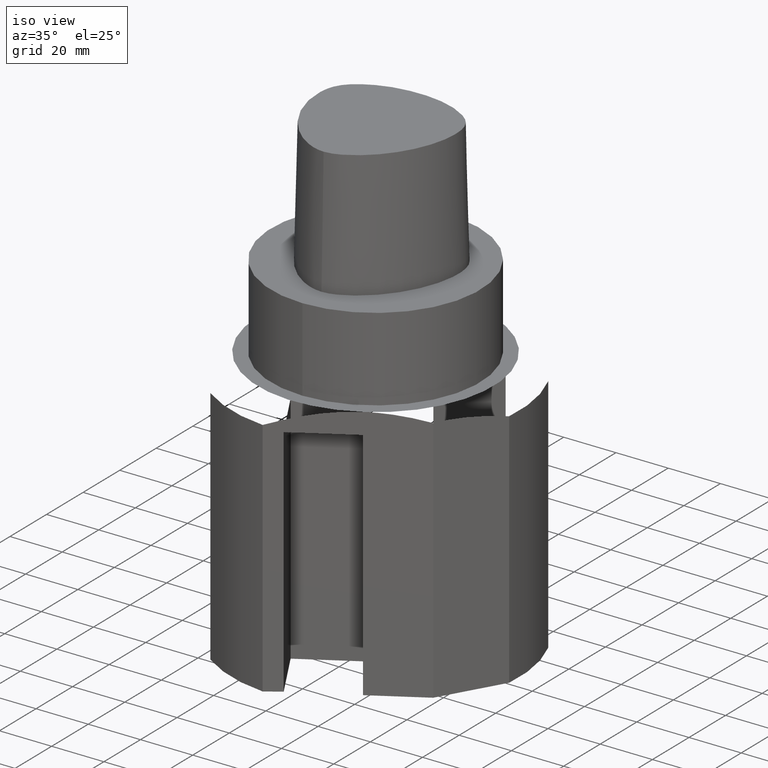
[diagram: clean part render]
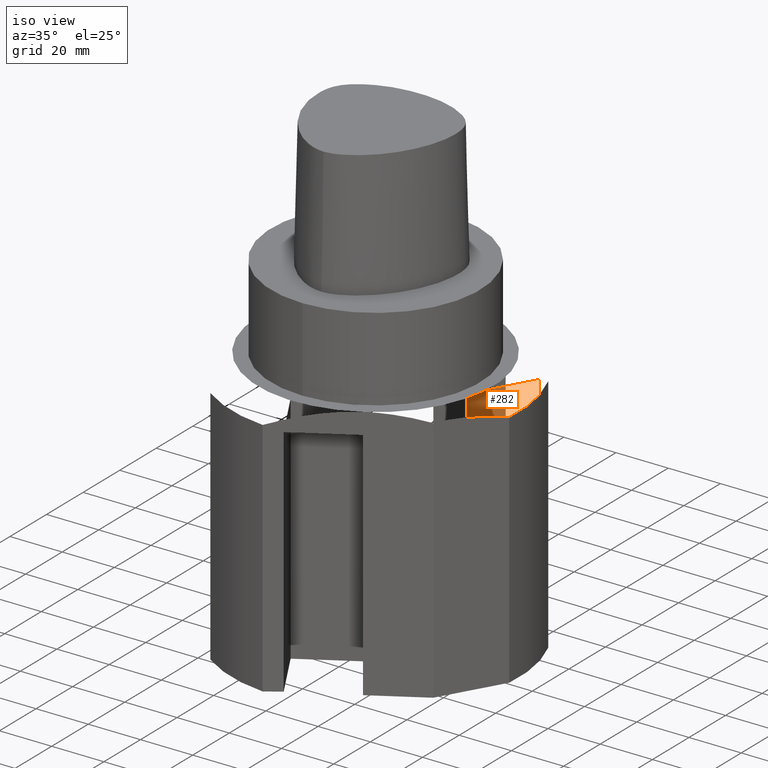
[diagram: same view with one face highlighted and labeled with its STEP entity id]
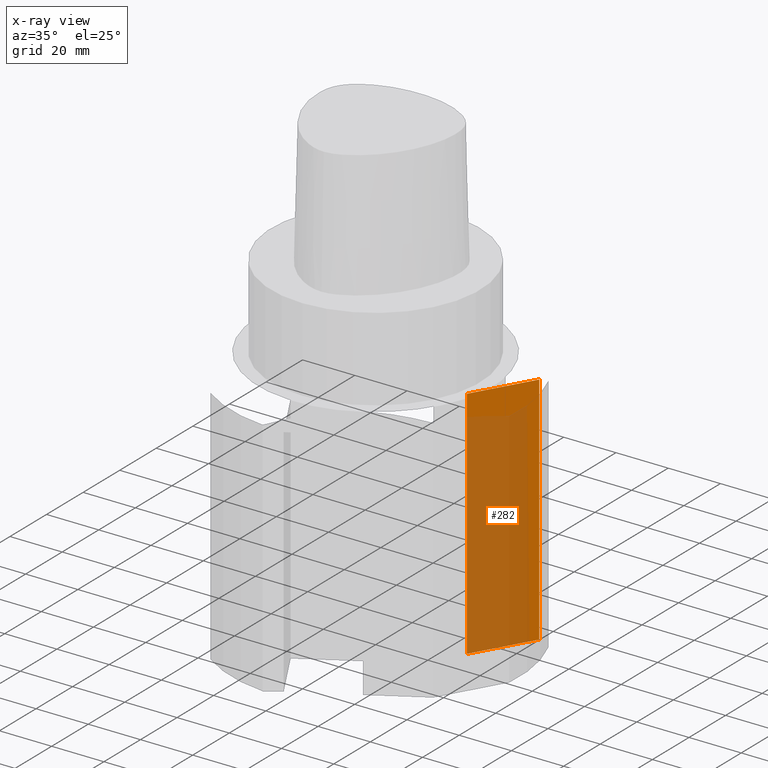
[diagram: x-ray of the same camera — body ghosted, the highlighted face saturated]
A machine part, iso view. The second image highlights one B-rep face of the part: STEP entity #282.
The next image is the same camera in x-ray: the body ghosted, the highlighted face saturated — about 76% of this face is hidden behind the body in this view.
In plain terms, the highlighted planar face has unit normal (0.866, -0.5, -0).
Its self-contained STEP definition (entity closure, byte-faithful):
#154=EDGE_CURVE('240[2]',#425,#426,#427,.T.);
#191=EDGE_CURVE('240[2]',#426,#480,#481,.T.);
#243=EDGE_CURVE('240[2]',#510,#425,#552,.T.);
#248=EDGE_CURVE('240[2]',#510,#480,#558,.T.);
#282=ADVANCED_FACE('240[2]',(#598),#599,.F.);
#425=VERTEX_POINT('',#1159);
#426=VERTEX_POINT('',#1160);
#427=LINE('',#1161,#1162);
#480=VERTEX_POINT('',#1596);
#481=LINE('',#1597,#1598);
#510=VERTEX_POINT('',#1644);
#552=LINE('',#1755,#1756);
#558=LINE('',#1764,#1765);
#598=FACE_OUTER_BOUND('',#1945,.T.);
#599=PLANE('',#1946);
#1159=CARTESIAN_POINT('',(44.1506342710993,26.4711437548649,-130.0));
#1160=CARTESIAN_POINT('',(44.1506342710993,26.4711437548649,-40.0000025629996));
#1161=CARTESIAN_POINT('',(44.1506342710993,26.4711437548649,-310.0));
#1162=VECTOR('',#2210,1.0);
#1596=CARTESIAN_POINT('',(31.6506363451487,4.82050795107898,-40.0000025629996));
#1597=CARTESIAN_POINT('',(31.6506363451487,4.82050795107898,-40.0000025629996));
#1598=VECTOR('',#2270,1.0);
#1644=CARTESIAN_POINT('',(31.6506363451487,4.82050795107904,-130.0));
#1755=CARTESIAN_POINT('',(24.3467409504397,-7.83021247916207,-130.0));
#1756=VECTOR('',#2335,1.0);
#1764=CARTESIAN_POINT('',(31.6506363451487,4.82050795107904,-310.0));
#1765=VECTOR('',#2361,1.0);
#1945=EDGE_LOOP('',(#2395,#2396,#2397,#2398));
#1946=AXIS2_PLACEMENT_3D('',#2399,#2400,#2401);
#2210=DIRECTION('',(1.74394356763722E-016,5.7130560690571E-017,1.0));
#2270=DIRECTION('',(-0.499999925495244,-0.866025446799775,-6.12323504930872E-017));
#2335=DIRECTION('',(0.499999925495244,0.866025446799775,-1.36673694556933E-016));
#2361=DIRECTION('',(7.54413538938068E-017,-1.14261101893613E-016,1.0));
#2395=ORIENTED_EDGE('',*,*,#243,.F.);
#2396=ORIENTED_EDGE('',*,*,#248,.T.);
#2397=ORIENTED_EDGE('',*,*,#191,.F.);
#2398=ORIENTED_EDGE('',*,*,#154,.F.);
#2399=CARTESIAN_POINT('',(37.9006356702665,15.6458264802214,-310.0));
#2400=DIRECTION('',(0.866025446799775,-0.499999925495244,-1.22464674646875E-016));
#2401=DIRECTION('',(0.0,2.44929385790558E-016,-1.0));